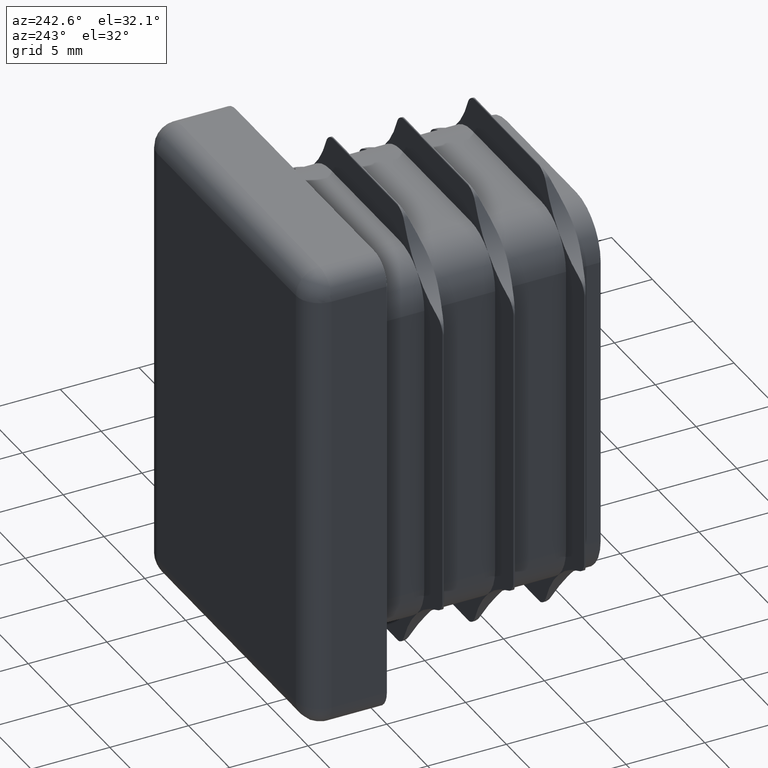
[diagram: clean part render]
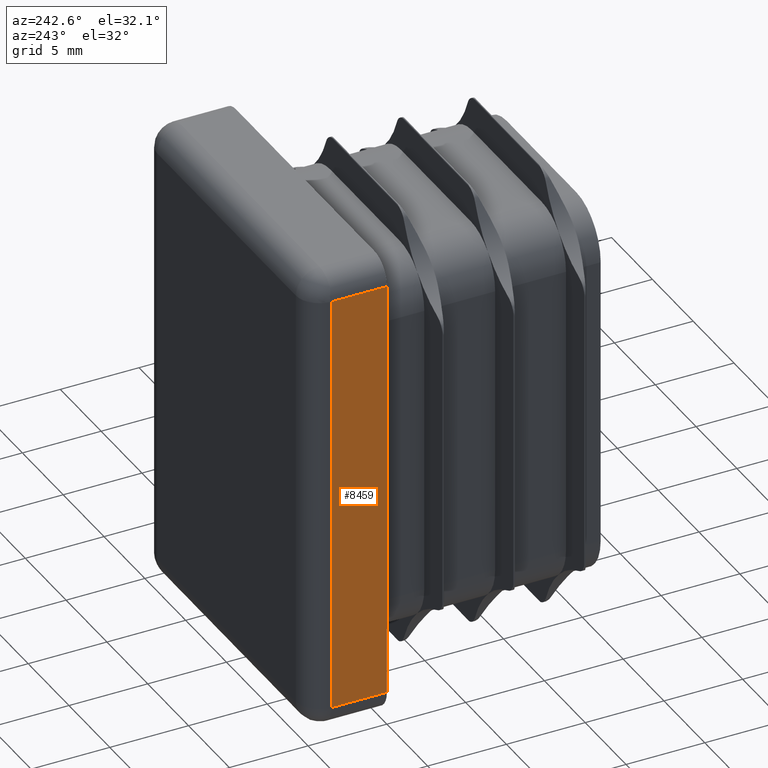
[diagram: same view with one face highlighted and labeled with its STEP entity id]
A machine part, auxiliary view. The second image highlights one B-rep face of the part: STEP entity #8459.
In plain terms, the highlighted planar face has unit normal (1, 0, -0).
Its self-contained STEP definition (entity closure, byte-faithful):
#403 = LINE ( 'NONE', #9182, #2337 ) ;
#536 = CARTESIAN_POINT ( 'NONE',  ( -10.00000000000000178, 5.000000000000000000, -13.50000000000000711 ) ) ;
#1250 = DIRECTION ( 'NONE',  ( -1.156482317317871478E-16, 0.000000000000000000, -1.000000000000000000 ) ) ;
#1273 = EDGE_CURVE ( 'NONE', #16204, #7209, #18181, .T. ) ;
#2109 = VECTOR ( 'NONE', #8665, 1000.000000000000000 ) ;
#2337 = VECTOR ( 'NONE', #2920, 1000.000000000000000 ) ;
#2920 = DIRECTION ( 'NONE',  ( -1.156482317317871478E-16, -0.000000000000000000, -1.000000000000000000 ) ) ;
#3025 = CARTESIAN_POINT ( 'NONE',  ( -10.00000000000000178, 0.000000000000000000, -15.00000000000000711 ) ) ;
#3588 = VECTOR ( 'NONE', #15093, 1000.000000000000000 ) ;
#4588 = ORIENTED_EDGE ( 'NONE', *, *, #9805, .T. ) ;
#5076 = EDGE_CURVE ( 'NONE', #7608, #17542, #403, .T. ) ;
#5786 = CARTESIAN_POINT ( 'NONE',  ( -10.00000000000000178, 5.000000000000000000, -15.00000000000000711 ) ) ;
#5903 = CARTESIAN_POINT ( 'NONE',  ( -9.999999999999998224, 3.500000000000000000, 13.49999999999999112 ) ) ;
#5906 = AXIS2_PLACEMENT_3D ( 'NONE', #5786, #10259, #1250 ) ;
#6466 = DIRECTION ( 'NONE',  ( 0.000000000000000000, -1.000000000000000000, 0.000000000000000000 ) ) ;
#7209 = VERTEX_POINT ( 'NONE', #9398 ) ;
#7608 = VERTEX_POINT ( 'NONE', #5903 ) ;
#7724 = VECTOR ( 'NONE', #6466, 1000.000000000000000 ) ;
#8459 = ADVANCED_FACE ( 'NONE', ( #14937 ), #11985, .F. ) ;
#8665 = DIRECTION ( 'NONE',  ( -0.000000000000000000, 1.000000000000000000, -0.000000000000000000 ) ) ;
#9097 = CARTESIAN_POINT ( 'NONE',  ( -10.00000000000000178, 0.000000000000000000, -13.50000000000000711 ) ) ;
#9182 = CARTESIAN_POINT ( 'NONE',  ( -10.00000000000000178, 3.500000000000000000, -13.50000000000000711 ) ) ;
#9398 = CARTESIAN_POINT ( 'NONE',  ( -9.999999999999998224, 0.000000000000000000, 13.49999999999999112 ) ) ;
#9492 = EDGE_LOOP ( 'NONE', ( #4588, #16282, #12880, #11018 ) ) ;
#9805 = EDGE_CURVE ( 'NONE', #7209, #7608, #19558, .T. ) ;
#10259 = DIRECTION ( 'NONE',  ( 1.000000000000000000, 0.000000000000000000, -1.156482317317871478E-16 ) ) ;
#10951 = CARTESIAN_POINT ( 'NONE',  ( -10.00000000000000178, 3.500000000000000000, -13.50000000000000711 ) ) ;
#11018 = ORIENTED_EDGE ( 'NONE', *, *, #1273, .T. ) ;
#11536 = CARTESIAN_POINT ( 'NONE',  ( -9.999999999999998224, 5.000000000000000000, 13.49999999999999112 ) ) ;
#11787 = LINE ( 'NONE', #536, #7724 ) ;
#11985 = PLANE ( 'NONE',  #5906 ) ;
#12880 = ORIENTED_EDGE ( 'NONE', *, *, #14082, .T. ) ;
#14082 = EDGE_CURVE ( 'NONE', #17542, #16204, #11787, .T. ) ;
#14937 = FACE_OUTER_BOUND ( 'NONE', #9492, .T. ) ;
#15093 = DIRECTION ( 'NONE',  ( 1.156482317317871478E-16, 0.000000000000000000, 1.000000000000000000 ) ) ;
#16204 = VERTEX_POINT ( 'NONE', #9097 ) ;
#16282 = ORIENTED_EDGE ( 'NONE', *, *, #5076, .T. ) ;
#17542 = VERTEX_POINT ( 'NONE', #10951 ) ;
#18181 = LINE ( 'NONE', #3025, #3588 ) ;
#19558 = LINE ( 'NONE', #11536, #2109 ) ;